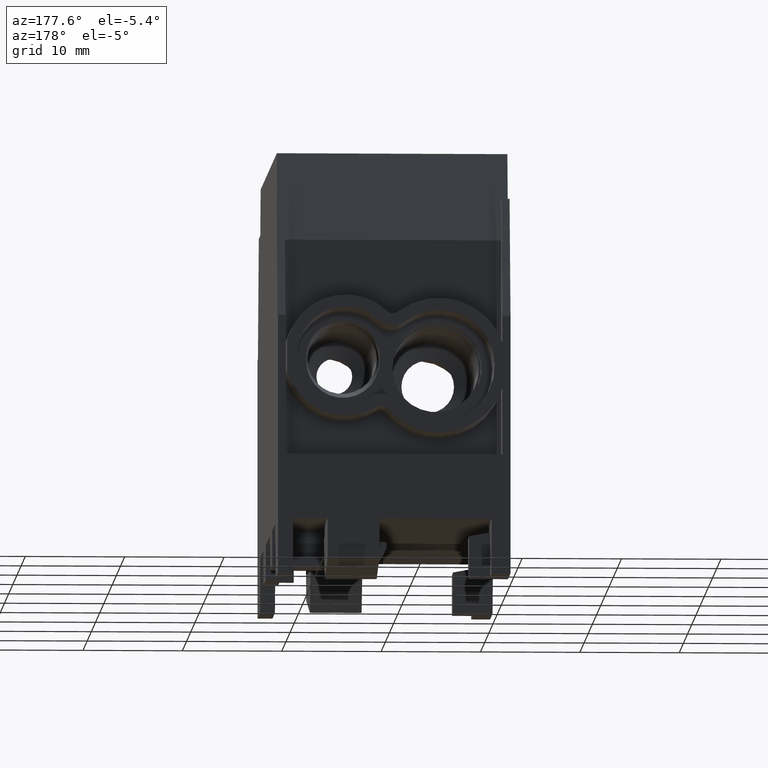
[diagram: clean part render]
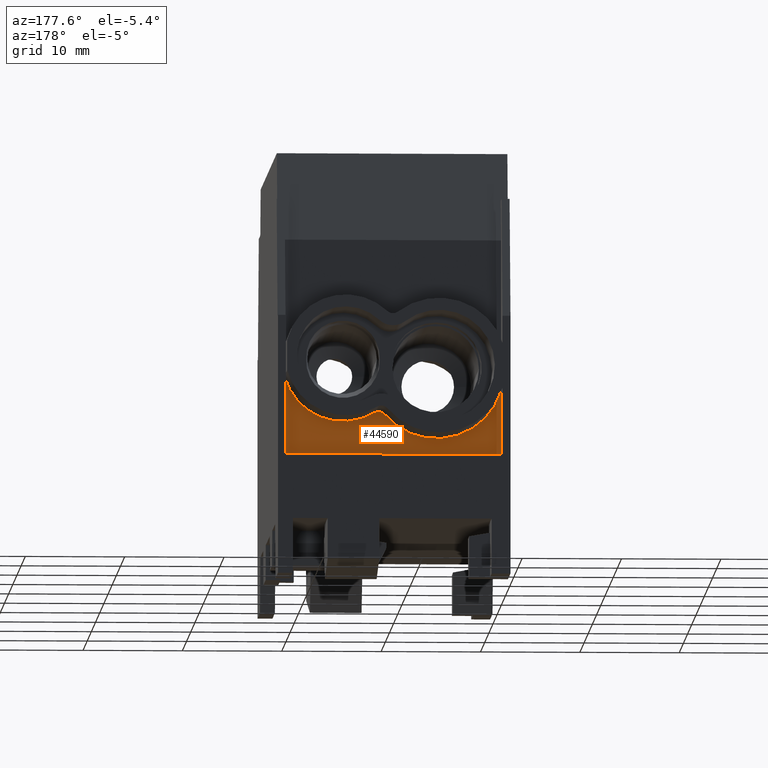
[diagram: same view with one face highlighted and labeled with its STEP entity id]
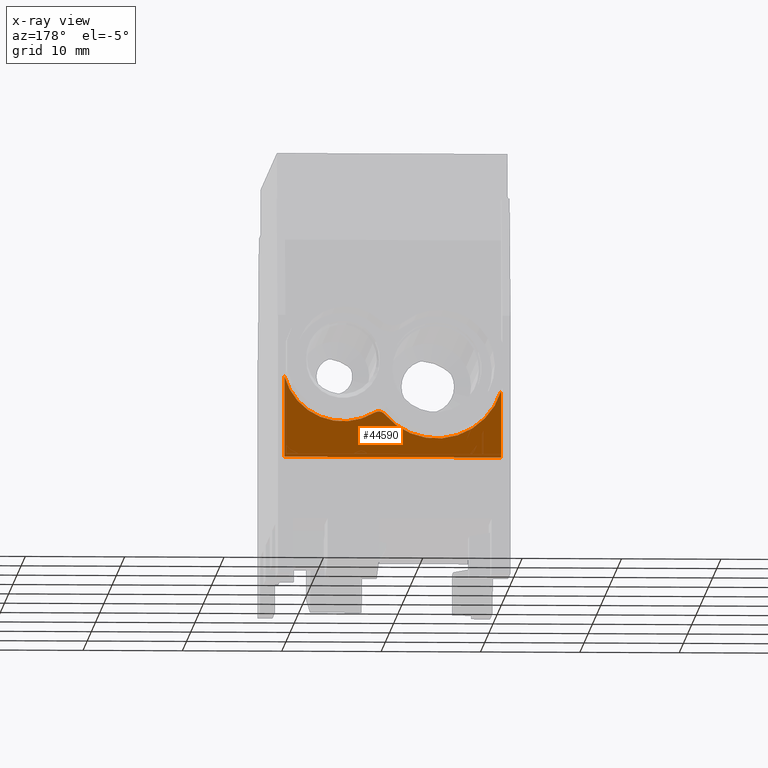
[diagram: x-ray of the same camera — body ghosted, the highlighted face saturated]
A machine part, auxiliary view. The second image highlights one B-rep face of the part: STEP entity #44590.
The next image is the same camera in x-ray: the body ghosted, the highlighted face saturated — about 0% of this face is hidden behind the body in this view.
In plain terms, the highlighted planar face has unit normal (0, -1, 0).
Its self-contained STEP definition (entity closure, byte-faithful):
#15640=CARTESIAN_POINT('',(10.9,21.,6.65080666151702));
#15650=VERTEX_POINT('',#15640);
#15680=CARTESIAN_POINT('',(10.9,21.,0.));
#15690=DIRECTION('',(0.,0.,-1.));
#15700=VECTOR('',#15690,1.);
#15710=LINE('',#15680,#15700);
#15720=CARTESIAN_POINT('',(10.9,21.,-1.5));
#15730=VERTEX_POINT('',#15720);
#15740=EDGE_CURVE('',#15650,#15730,#15710,.T.);
#16030=CARTESIAN_POINT('',(-10.9,21.,-1.5));
#16040=VERTEX_POINT('',#16030);
#16070=CARTESIAN_POINT('',(-10.9,21.,0.));
#16080=DIRECTION('',(0.,0.,1.));
#16090=VECTOR('',#16080,1.);
#16100=LINE('',#16070,#16090);
#16110=CARTESIAN_POINT('',(-10.9,21.,5.20250156445618));
#16120=VERTEX_POINT('',#16110);
#16130=EDGE_CURVE('',#16040,#16120,#16100,.T.);
#18370=CARTESIAN_POINT('',(5.32907051820075E-15,21.,-1.5));
#18380=DIRECTION('',(-1.,0.,0.));
#18390=VECTOR('',#18380,1.);
#18400=LINE('',#18370,#18390);
#18410=EDGE_CURVE('',#15730,#16040,#18400,.T.);
#19910=CARTESIAN_POINT('',(5.00000000000001,21.,8.19999999999999));
#19920=DIRECTION('',(0.,-1.,0.));
#19930=DIRECTION('',(0.,0.,-1.));
#19940=AXIS2_PLACEMENT_3D('',#19910,#19920,#19930);
#19950=CIRCLE('',#19940,6.1);
#19960=CARTESIAN_POINT('',(1.82960363499416,21.,2.98860988902598));
#19970=VERTEX_POINT('',#19960);
#19980=EDGE_CURVE('',#19970,#15650,#19950,.T.);
#44320=CARTESIAN_POINT('',(11.6,21.,20.3));
#44330=DIRECTION('',(0.,-1.,0.));
#44340=DIRECTION('',(0.,0.,-1.));
#44350=AXIS2_PLACEMENT_3D('',#44320,#44330,#44340);
#44360=PLANE('',#44350);
#44370=CARTESIAN_POINT('',(1.41381394778028,21.,2.30514889086545));
#44380=DIRECTION('',(0.,-1.,0.));
#44390=DIRECTION('',(-1.,0.,0.));
#44400=AXIS2_PLACEMENT_3D('',#44370,#44380,#44390);
#44410=CIRCLE('',#44400,0.8);
#44420=CARTESIAN_POINT('',(0.801833532224463,21.,2.82039637603751));
#44430=VERTEX_POINT('',#44420);
#44440=EDGE_CURVE('',#19970,#44430,#44410,.T.);
#44450=ORIENTED_EDGE('',*,*,#44440,.F.);
#44460=CARTESIAN_POINT('',(-4.39999999999999,21.,7.19999999999999));
#44470=DIRECTION('',(0.,-1.,0.));
#44480=DIRECTION('',(0.,0.,-1.));
#44490=AXIS2_PLACEMENT_3D('',#44460,#44470,#44480);
#44500=CIRCLE('',#44490,6.8);
#44510=EDGE_CURVE('',#16120,#44430,#44500,.T.);
#44520=ORIENTED_EDGE('',*,*,#44510,.T.);
#44530=ORIENTED_EDGE('',*,*,#16130,.T.);
#44540=ORIENTED_EDGE('',*,*,#18410,.T.);
#44550=ORIENTED_EDGE('',*,*,#15740,.T.);
#44560=ORIENTED_EDGE('',*,*,#19980,.T.);
#44570=EDGE_LOOP('',(#44560,#44550,#44540,#44530,#44520,#44450));
#44580=FACE_OUTER_BOUND('',#44570,.T.);
#44590=ADVANCED_FACE('',(#44580),#44360,.F.);